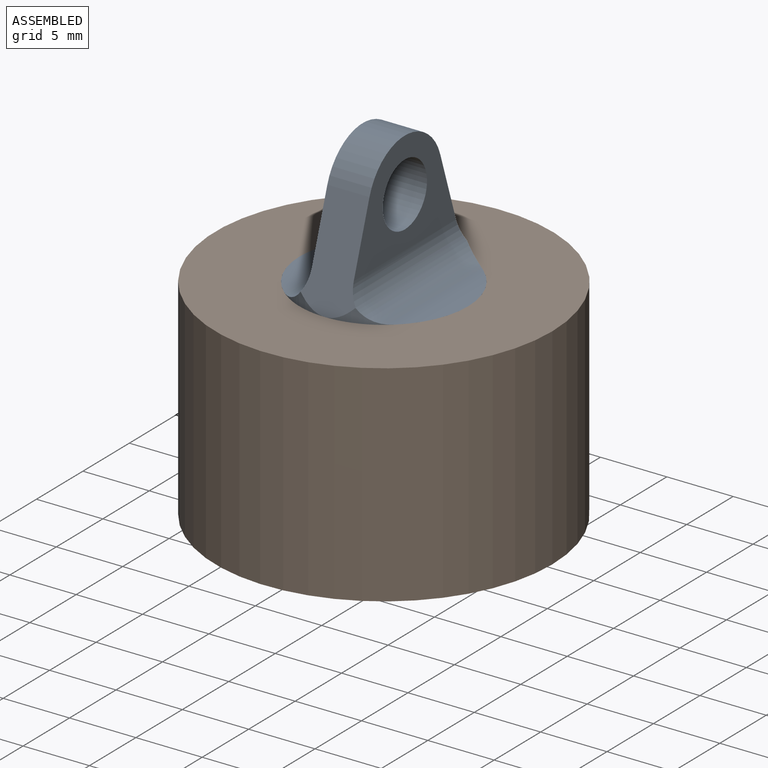
[diagram: assembled view]
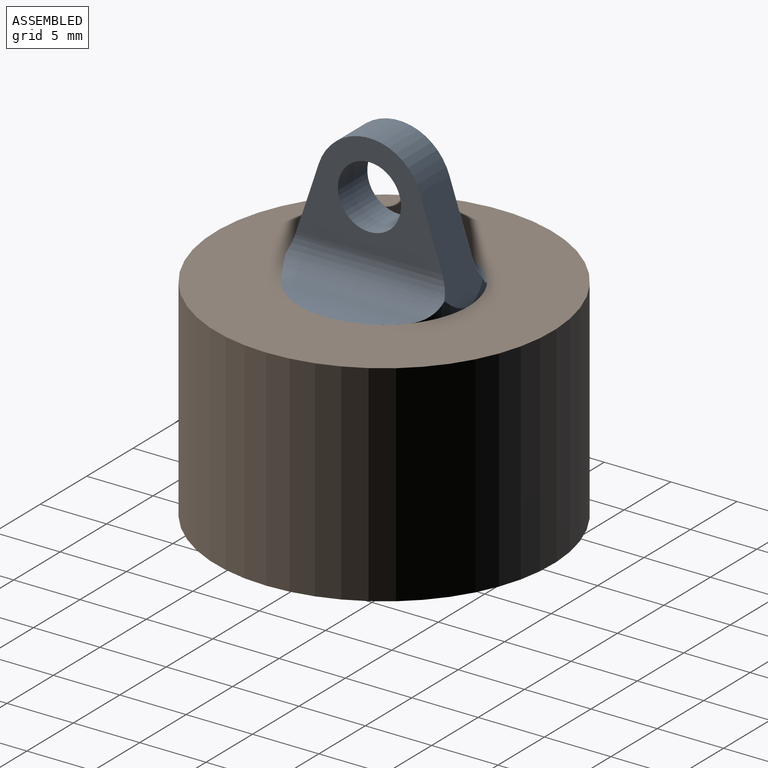
[diagram: assembled view, second angle]
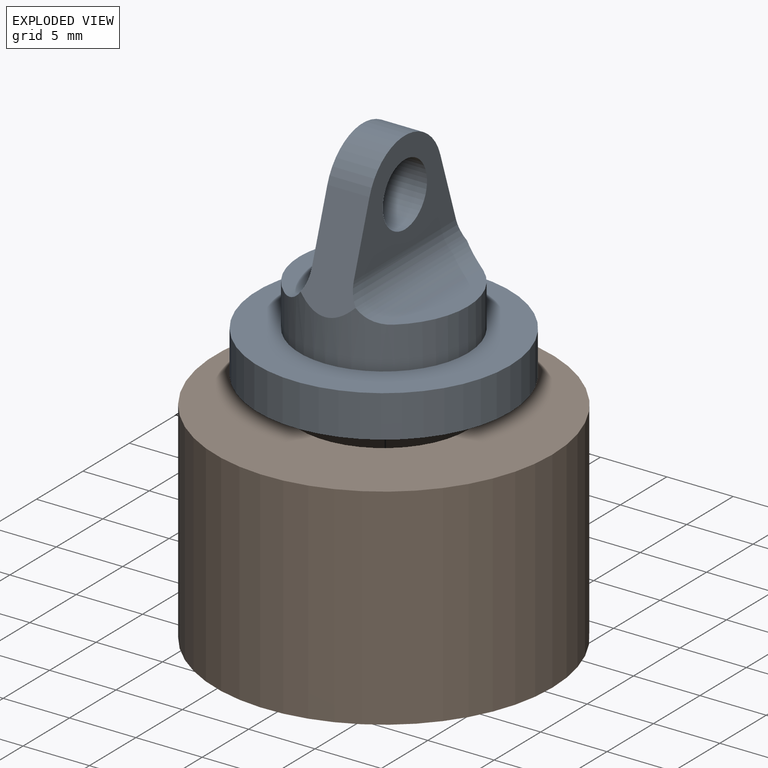
[diagram: exploded view]
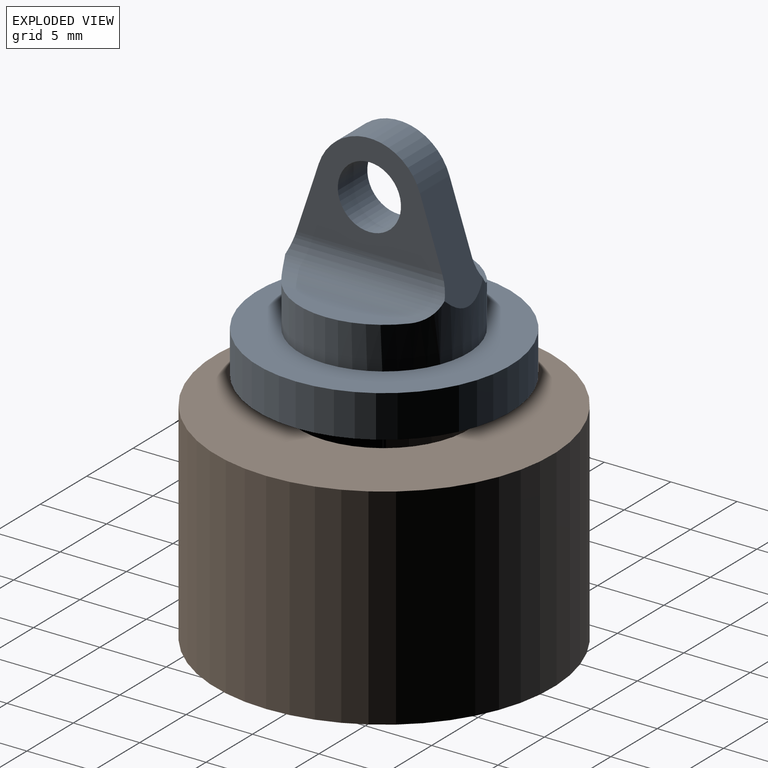
[diagram: exploded view, second angle]
ASSEMBLY  parts=2 mates=2
PART A: 14 faces, bbox 19.1x19.1x16.7 mm
  f0: plane 7.65x4.17mm, normal (0,-0.95,0.32), area 25.6mm2, adj f6,f9,f10,f11,f12,f13
  f1: plane 7.65x4.17mm, normal (0,0.95,0.32), area 25.6mm2, adj f6,f9,f10,f11,f12,f13
  f2: plane 9.65x2.22mm, normal (0,0,1), area 14.9mm2, adj f6,f12
  f3: cylinder r=9.53mm len=19.05mm, axis (0,0,-1), area 190mm2, adj f4,f5
  f4: plane 19.05x19.05mm, normal (0,0,1), area 158.3mm2, adj f3,f6
  f5: plane 19.05x19.05mm, normal (0,0,-1), area 285mm2, adj f3
  f6: cylinder r=6.35mm len=12.7mm, axis (0,0,-1), area 132.5mm2, adj f0,f1,f2,f4,f7,f12,f13
  f7: plane 9.65x2.22mm, normal (0,0,1), area 14.9mm2, adj f6,f13
  f8: cylinder r=2.38mm len=4.76mm, axis (-1,0,0), area 47.5mm2, adj f10,f11
  f9: cylinder r=4.02mm len=7.62mm, axis (-1,0,0), area 31.9mm2, adj f0,f1,f10,f11
  f10: plane 11.01x7.83mm, normal (1,0,0), area 44.8mm2, adj f0,f1,f8,f9,f13
  f11: plane 11.01x7.83mm, normal (-1,0,0), area 44.8mm2, adj f0,f1,f8,f9,f12
  f12: cylinder r=2.54mm len=12mm, axis (0,1,0), area 44.9mm2, adj f0,f1,f2,f6,f11
  f13: cylinder r=2.54mm len=12mm, axis (0,-1,0), area 44.9mm2, adj f0,f1,f6,f7,f10
PART B: 6 faces, bbox 25.4x25.4x15.9 mm
  f0: cylinder r=9.53mm len=19.05mm, axis (0,0,-1), area 760.1mm2, adj f2,f5
  f1: cylinder r=12.7mm len=25.4mm, axis (0,0,-1), area 1266.8mm2, adj f2,f3
  f2: plane 25.4x25.4mm, normal (0,0,1), area 221.7mm2, adj f0,f1
  f3: plane 25.4x25.4mm, normal (0,0,-1), area 380mm2, adj f1,f4
  f4: cylinder r=6.35mm len=12.7mm, axis (0,0,-1), area 126.7mm2, adj f3,f5
  f5: plane 19.05x19.05mm, normal (0,0,1), area 158.3mm2, adj f0,f4
PLACE A t=(40.06,-20.54,11.73)mm
PLACE B rot(axis=(1,0,0),180deg) t=(40.06,-20.54,18.08)mm
MATE planar B.f1 <-> A.f3  axis (0,0,-1) through (40.06,-20.54,14.91)mm
MATE cylindrical A.f6 <-> B.f4  axis (0,0,-1) through (40.06,-20.54,17.03)mm
